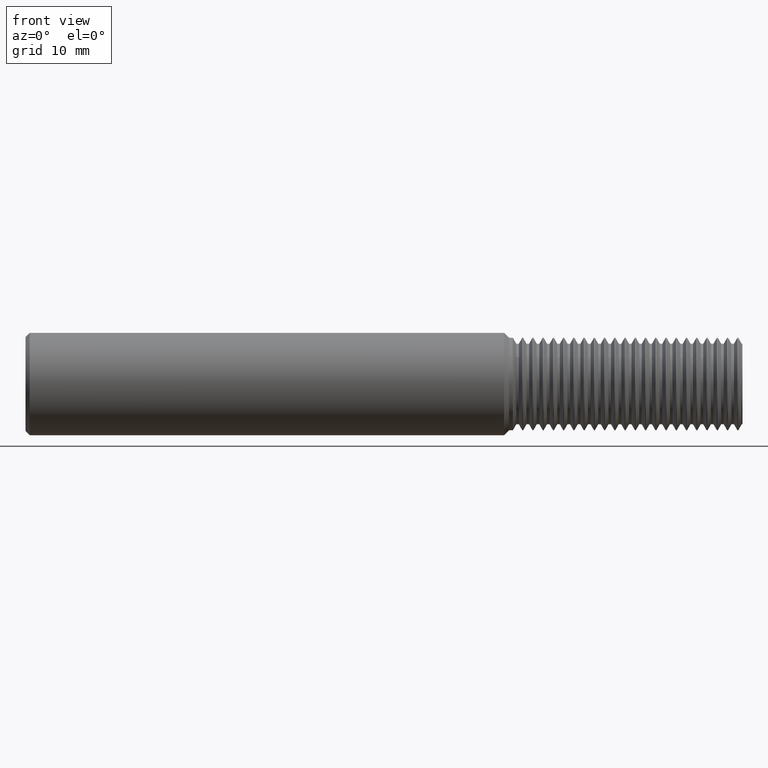
[diagram: clean part render]
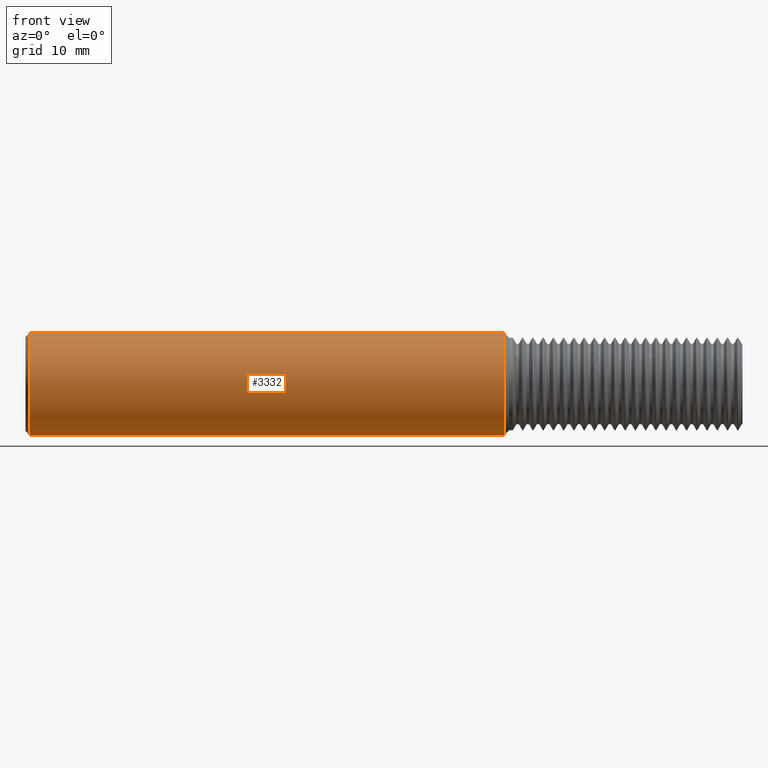
[diagram: same view with one face highlighted and labeled with its STEP entity id]
A machine part, front view. The second image highlights one B-rep face of the part: STEP entity #3332.
In plain terms, the highlighted cylindrical surface (partial cylindrical patch) has radius 6.3462 mm, axis along (-1, -0, -0).
Its self-contained STEP definition (entity closure, byte-faithful):
#225 = VERTEX_POINT ( 'NONE', #1671 ) ;
#752 = VERTEX_POINT ( 'NONE', #2893 ) ;
#968 = ORIENTED_EDGE ( 'NONE', *, *, #4539, .T. ) ;
#971 = CARTESIAN_POINT ( 'NONE',  ( 2.336149999999999949, 0.000000000000000000, 0.000000000000000000 ) ) ;
#1104 = FACE_OUTER_BOUND ( 'NONE', #3871, .T. ) ;
#1160 = EDGE_CURVE ( 'NONE', #3857, #225, #4353, .T. ) ;
#1399 = CARTESIAN_POINT ( 'NONE',  ( 2.336149999999999949, 3.059780027669661931E-17, -0.2498499999999999888 ) ) ;
#1454 = DIRECTION ( 'NONE',  ( 0.000000000000000000, 0.000000000000000000, -1.000000000000000000 ) ) ;
#1488 = DIRECTION ( 'NONE',  ( 0.000000000000000000, 0.000000000000000000, 1.000000000000000000 ) ) ;
#1555 = AXIS2_PLACEMENT_3D ( 'NONE', #2936, #4424, #1488 ) ;
#1623 = VECTOR ( 'NONE', #1783, 39.37007874015748143 ) ;
#1671 = CARTESIAN_POINT ( 'NONE',  ( 0.02000000000000009409, 0.000000000000000000, -0.2498499999999999888 ) ) ;
#1783 = DIRECTION ( 'NONE',  ( -1.000000000000000000, -0.000000000000000000, -0.000000000000000000 ) ) ;
#1908 = ORIENTED_EDGE ( 'NONE', *, *, #2835, .T. ) ;
#1914 = CIRCLE ( 'NONE', #4638, 0.2498499999999999888 ) ;
#1922 = DIRECTION ( 'NONE',  ( -1.000000000000000000, -0.000000000000000000, -0.000000000000000000 ) ) ;
#2194 = DIRECTION ( 'NONE',  ( 1.000000000000000000, 0.000000000000000000, 0.000000000000000000 ) ) ;
#2196 = DIRECTION ( 'NONE',  ( 0.000000000000000000, 0.000000000000000000, 1.000000000000000000 ) ) ;
#2703 = LINE ( 'NONE', #3779, #3030 ) ;
#2826 = ORIENTED_EDGE ( 'NONE', *, *, #3403, .T. ) ;
#2835 = EDGE_CURVE ( 'NONE', #752, #225, #1914, .T. ) ;
#2893 = CARTESIAN_POINT ( 'NONE',  ( 0.02000000000000009409, 3.059780027669661931E-17, 0.2498499999999999888 ) ) ;
#2936 = CARTESIAN_POINT ( 'NONE',  ( 0.000000000000000000, 0.000000000000000000, 0.000000000000000000 ) ) ;
#3030 = VECTOR ( 'NONE', #1922, 39.37007874015748143 ) ;
#3091 = VERTEX_POINT ( 'NONE', #3793 ) ;
#3332 = ADVANCED_FACE ( 'NONE', ( #1104 ), #3335, .T. ) ;
#3335 = CYLINDRICAL_SURFACE ( 'NONE', #1555, 0.2498499999999999888 ) ;
#3403 = EDGE_CURVE ( 'NONE', #3857, #3091, #4450, .T. ) ;
#3575 = AXIS2_PLACEMENT_3D ( 'NONE', #971, #4672, #2196 ) ;
#3779 = CARTESIAN_POINT ( 'NONE',  ( 0.000000000000000000, 0.000000000000000000, 0.2498499999999999888 ) ) ;
#3793 = CARTESIAN_POINT ( 'NONE',  ( 2.336149999999999949, 0.000000000000000000, 0.2498499999999999888 ) ) ;
#3857 = VERTEX_POINT ( 'NONE', #1399 ) ;
#3871 = EDGE_LOOP ( 'NONE', ( #4543, #2826, #968, #1908 ) ) ;
#3984 = CARTESIAN_POINT ( 'NONE',  ( 0.000000000000000000, 3.059780027669661931E-17, -0.2498499999999999888 ) ) ;
#4353 = LINE ( 'NONE', #3984, #1623 ) ;
#4424 = DIRECTION ( 'NONE',  ( -1.000000000000000000, -0.000000000000000000, -0.000000000000000000 ) ) ;
#4450 = CIRCLE ( 'NONE', #3575, 0.2498499999999999888 ) ;
#4539 = EDGE_CURVE ( 'NONE', #3091, #752, #2703, .T. ) ;
#4543 = ORIENTED_EDGE ( 'NONE', *, *, #1160, .F. ) ;
#4638 = AXIS2_PLACEMENT_3D ( 'NONE', #4748, #2194, #1454 ) ;
#4672 = DIRECTION ( 'NONE',  ( -1.000000000000000000, -0.000000000000000000, -0.000000000000000000 ) ) ;
#4748 = CARTESIAN_POINT ( 'NONE',  ( 0.02000000000000009409, 0.000000000000000000, 0.000000000000000000 ) ) ;